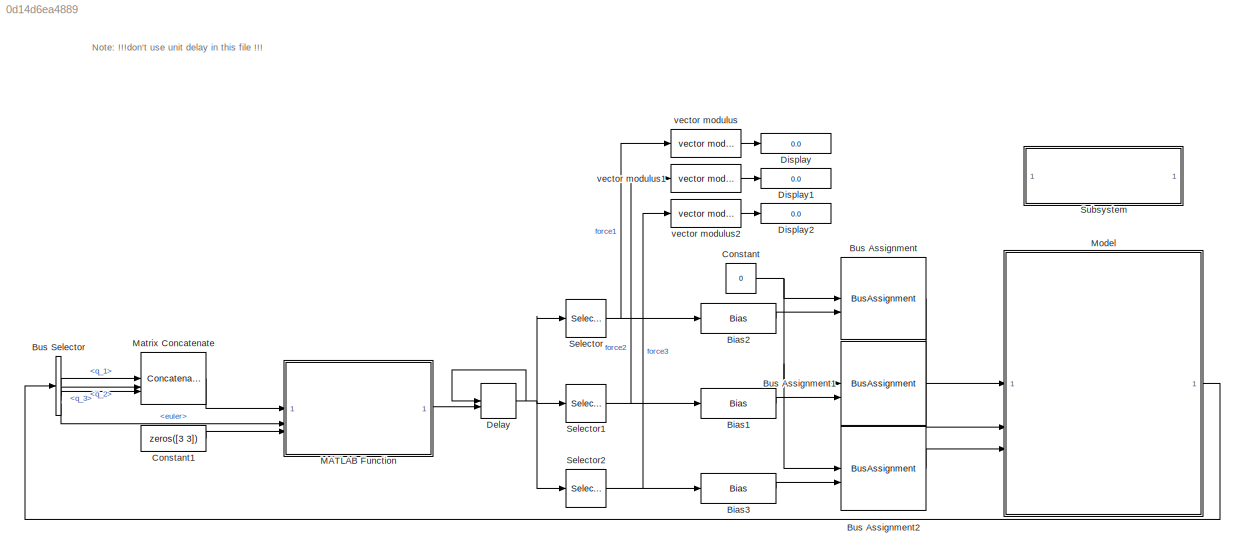
MODEL slx_0d14d6ea4889
KIND model
BLOCK [Bias] Bias1
  SaturateOnIntegerOverflow = off
BLOCK [Bias] Bias2
  SaturateOnIntegerOverflow = off
BLOCK [Bias] Bias3
  SaturateOnIntegerOverflow = off
BLOCK [BusAssignment] Bus Assignment
  AssignedSignals = force
BLOCK [BusAssignment] Bus Assignment1
  AssignedSignals = force
BLOCK [BusAssignment] Bus Assignment2
  AssignedSignals = force
BLOCK [BusSelector] Bus Selector
  OutputSignals = q_1,q_2,q_3,euler
BLOCK [Constant] Constant
  OutDataTypeStr = Bus: Payload_In_Bus
  Value = 0
BLOCK [Constant] Constant1
  Value = zeros([3 3])
BLOCK [Delay] Delay
  DelayLength = 1
  InitialConditionSource = Input port
  InputPortMap = u0,p4
BLOCK [Display] Display
  Decimation = 1
BLOCK [Display] Display1
  Decimation = 1
BLOCK [Display] Display2
  Decimation = 1
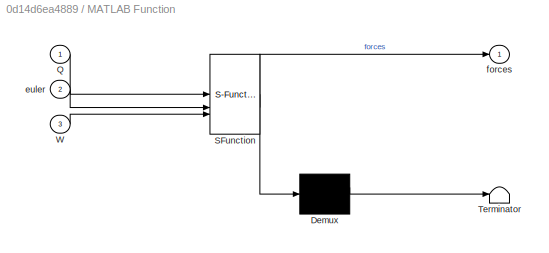
BLOCK [SubSystem] MATLAB Function
  ErrorFcn = Stateflow.Translate.translate
  PermitHierarchicalResolution = ExplicitOnly
  SFBlockType = MATLAB Function
  TreatAsAtomicUnit = on
BLOCK [Demux] MATLAB Function/ Demux 
  Outputs = 1
BLOCK [S-Function] MATLAB Function/ SFunction 
  EnableBusSupport = on
  FunctionName = sf_sfun
  Parameters = L,M,g,mL
  PortCounts = [3 2]
  SFcnIsStateOwnerBlock = off
  SFunctionDeploymentMode = off
  Tag = Stateflow S-Function 2
BLOCK [Terminator] MATLAB Function/ Terminator 
BLOCK [Inport] MATLAB Function/Q
BLOCK [Inport] MATLAB Function/W
  Port = 3
BLOCK [Inport] MATLAB Function/euler
  Port = 2
BLOCK [Outport] MATLAB Function/forces
BLOCK [Concatenate] Matrix Concatenate
  ConcatenateDimension = 2
  Mode = Multidimensional array
  NumInputs = 3
BLOCK [ModelReference] Model
  ModelNameDialog = payload_6dof
  ModelReferenceVersion = 1.102
BLOCK [Selector] Selector
  IndexOptions = Index vector (dialog),Index vector (dialog)
  Indices = [1 2 3],[1]
  InputPortWidth = 3
  NumberOfDimensions = 2
  OutputSizes = 1,1
BLOCK [Selector] Selector1
  IndexOptions = Index vector (dialog),Index vector (dialog)
  Indices = [1 2 3],[2]
  InputPortWidth = 3
  NumberOfDimensions = 2
  OutputSizes = 1,1
BLOCK [Selector] Selector2
  IndexOptions = Index vector (dialog),Index vector (dialog)
  Indices = [1 2 3],[3]
  InputPortWidth = 3
  NumberOfDimensions = 2
  OutputSizes = 1,1
BLOCK [SubSystem] Subsystem
  OpenFcn = run('simplot.m');
BLOCK [Reference] vector modulus  REF=mqlib/vector modulus  (lib defined in slx_e55b6aeabbfa)
  SourceBlock = mqlib/vector modulus
BLOCK [Reference] vector modulus1  REF=mqlib/vector modulus  (lib defined in slx_e55b6aeabbfa)
  SourceBlock = mqlib/vector modulus
BLOCK [Reference] vector modulus2  REF=mqlib/vector modulus  (lib defined in slx_e55b6aeabbfa)
  SourceBlock = mqlib/vector modulus
ANNOTATION (root): Note: !!!don't use unit delay in this file !!!
LINE Bias1:1 -> Bus Assignment1:2
LINE Bias2:1 -> Bus Assignment:2
LINE Bias3:1 -> Bus Assignment2:2
LINE Bus Assignment1:1 -> Model:2
LINE Bus Assignment2:1 -> Model:3
LINE Bus Assignment:1 -> Model:1
LINE Bus Selector:1 -> Matrix Concatenate:1
LINE Bus Selector:2 -> Matrix Concatenate:2
LINE Bus Selector:3 -> Matrix Concatenate:3
LINE Bus Selector:4 -> MATLAB Function:2
LINE Constant1:1 -> MATLAB Function:3
NET Constant:1 -> Bus Assignment1:1, Bus Assignment2:1, Bus Assignment:1
NET Delay:1 -> Delay:1, Selector1:1, Selector2:1, Selector:1
LINE MATLAB Function:1 -> Delay:2
LINE Matrix Concatenate:1 -> MATLAB Function:1
LINE Model:1 -> Bus Selector:1
NET Selector1:1 -> Bias1:1, vector modulus1:1
NET Selector2:1 -> Bias3:1, vector modulus2:1
NET Selector:1 -> Bias2:1, vector modulus:1
LINE vector modulus1:1 -> Display1:1
LINE vector modulus2:1 -> Display2:1
LINE vector modulus:1 -> Display:1
note: NET lines group one-source signal fan-out (src -> all destinations, sorted); 1:1 wires keep LINE
CHART MATLAB Function states=1 transitions=1
  STATE_LABEL 'eML_blk_kernel()'
  STATE_LABEL "SCRIPT:\nfunction forces  = cable_trim(Q, euler, W, mL, M, L, g)\n% mL: mass of payload (scalar)\n% M: drone mass vector (3 X 1)\n% L: length vector of cables (3 X 1)\n% Q: cable direction matrix (3 X 3)\n% W: cable angular velocity matrix (3 X 3)\nrho1 = [0.5 0 -0.1]';\nrho2 = [-0.5 0.4 -0.1]';\nrho3 = [-0.5 -0.4 -0.1]';\nP = [eye(3) eye(3) eye(3); hat_map(rho1) hat_map(rho2) hat_map(rho3)];\ng = [0; 0; g];...<+1015ch>"
CHART  states=0 transitions=0
